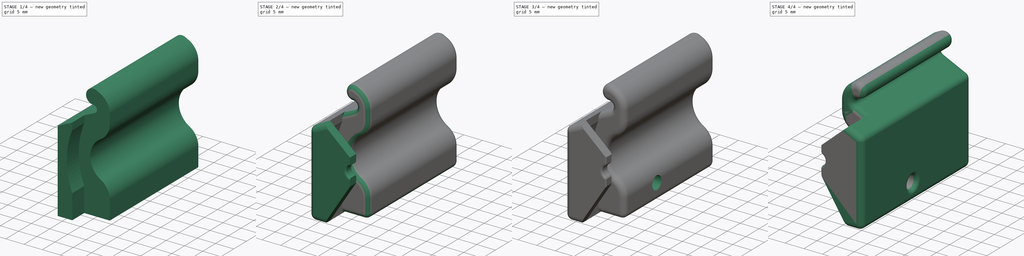
[diagram: build sequence overview — one tinted view per stage of 4, left to right]
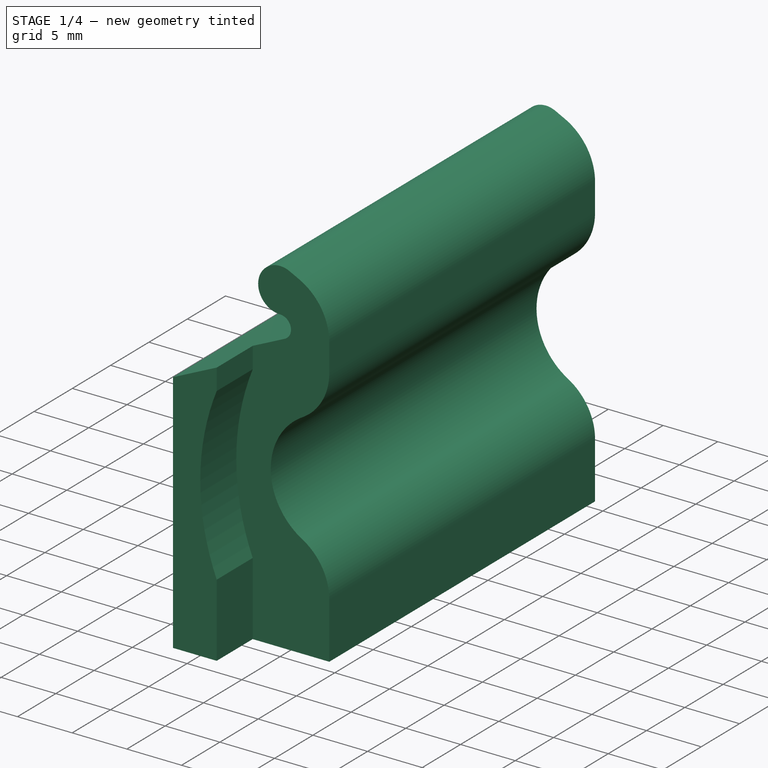
[diagram: stage 1 of 4 — iso view after this stage's code; geometry added in this stage tinted green]
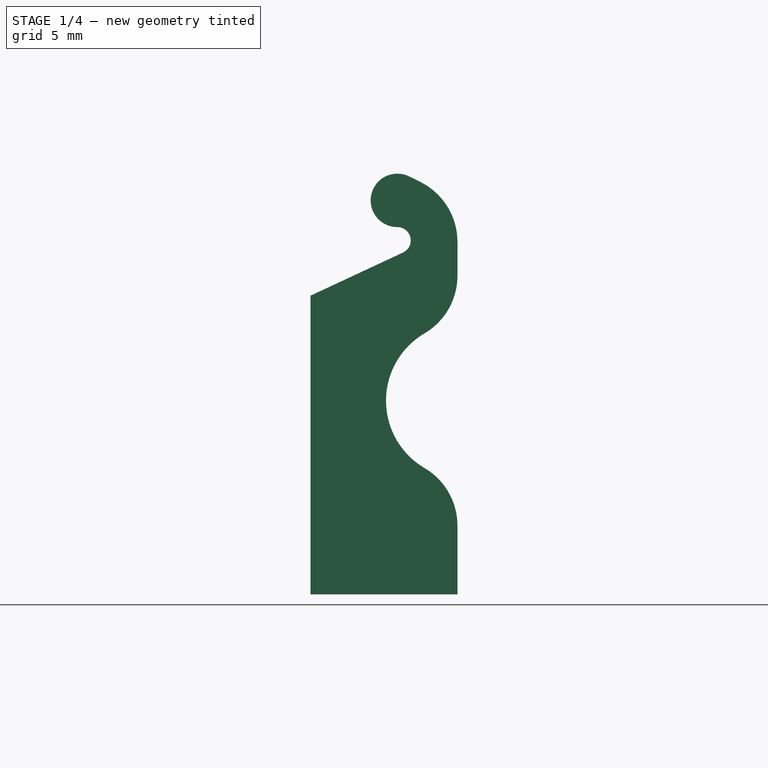
[diagram: stage 1 of 4 — front view after this stage's code; geometry added in this stage tinted green]
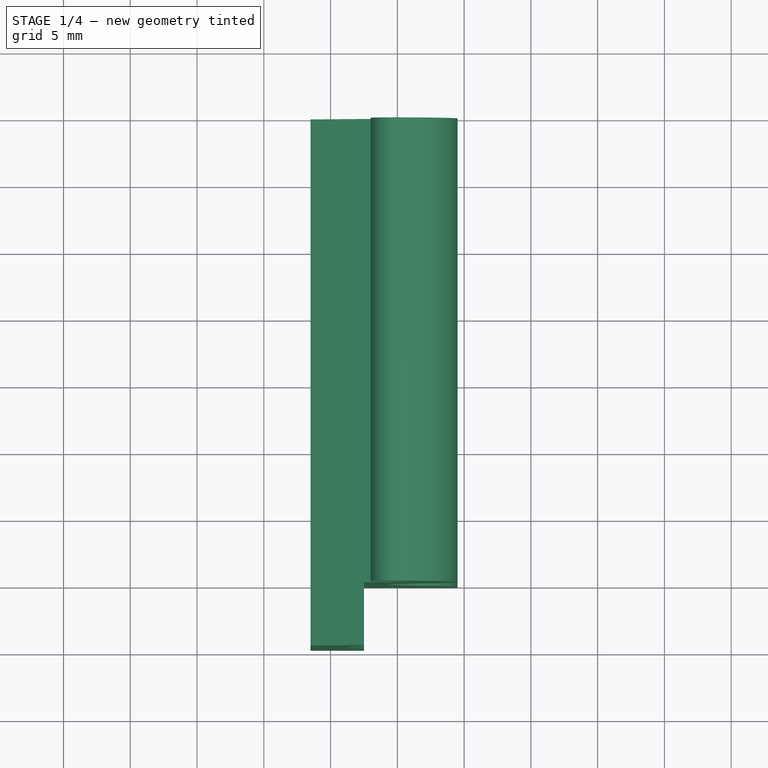
[diagram: stage 1 of 4 — top view after this stage's code; geometry added in this stage tinted green]
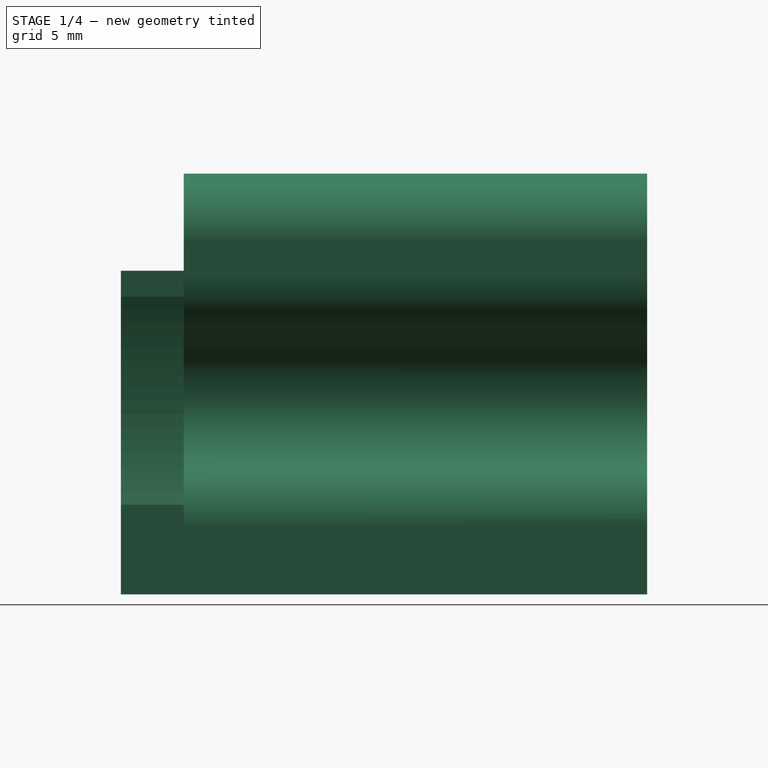
[diagram: stage 1 of 4 — right view after this stage's code; geometry added in this stage tinted green]
FCSTD DOCUMENT  (FreeCAD 1.1R20260106 (Git shallow))
Label: cartridge-clamp
License: CERN Open Hardware Licence strongly-reciprocal
LicenseURL: https://cern-ohl.web.cern.ch/
objects: PartDesign::Fillet×6, Sketcher::SketchObject×4, PartDesign::Pad×3, PartDesign::Chamfer×1, PartDesign::Pocket×1, PartDesign::Body×1, App::Point×1, Part::Mirroring×1
note: 43 computed .brp shape members not serialized (recipe doc carries the construction recipe); baked Part::Feature solids carry a one-line shape summary decoded from their .brp

FEATURE [Sketcher::SketchObject] Sketch
  ArcFitTolerance = 1e-06
  AttachmentSupport = -> [XZ_Plane]
  ExternalTypes = [0]
  FullyConstrained = true
  MakeInternals = false
  MapMode = 5
  Placement = pos=(0,0,0) rot=(1,0,0;1.5708rad)
  sketch-geometry (10):
    g0: LineSegment StartX=4.5 StartY=-20.8286 StartZ=0 EndX=4.5 EndY=-29.5 EndZ=0
    g1: LineSegment StartX=4.5 StartY=-29.5 StartZ=0 EndX=-6.5 EndY=-29.5 EndZ=0
    g2: LineSegment StartX=-6.5 StartY=-29.5 StartZ=0 EndX=-6.5 EndY=-7.13438 EndZ=0
    g3: LineSegment StartX=-6.5 StartY=-7.13438 StartZ=0 EndX=0.422618 EndY=-3.90631 EndZ=0
    g4: ArcOfCircle CenterX=-6e-16 CenterY=-3 CenterZ=0 NormalX=0 NormalY=0 NormalZ=1 AngleXU=0 Radius=1 StartAngle=5.14872 EndAngle=7.85398
    g5: ArcOfCircle CenterX=0 CenterY=0 CenterZ=0 NormalX=0 NormalY=0 NormalZ=1 AngleXU=0 Radius=2 StartAngle=1.11024 EndAngle=4.71239
    g6: LineSegment StartX=0.888889 StartY=1.79161 StartZ=0 EndX=4.5 EndY=1e-16 EndZ=0
    g7: LineSegment StartX=4.5 StartY=0 StartZ=0 EndX=4.5 EndY=-9.17141 EndZ=0
    g8: ArcOfCircle CenterX=5 CenterY=-15 CenterZ=0 NormalX=0 NormalY=0 NormalZ=1 AngleXU=0 Radius=5.85 StartAngle=1.65637 EndAngle=4.62681
    g9: LineSegment [constr] StartX=0 StartY=0 StartZ=0 EndX=-6e-16 EndY=-3 EndZ=0
  constraints (28):
    c: Coincident(g0,g1)
    c: Horizontal(g1)
    c: Coincident(g1,g2)
    c: Vertical(g2)
    c: Coincident(g2,g3)
    c: Tangent(g5,g6) = 1.5708
    c: Coincident(g6,g7)
    c: Vertical(g7)
    c: Radius(g4) = 1
    c: Radius(g5) = 2
    c: Vertical(g0)
    c: Tangent(g5,g4) = 1.5708
    c: Tangent(g4,g3) = -1.5708
    c: Coincident(g5,g-1)
    c: PointOnObject(g7,g0)
    c: Coincident(g8,g0)
    c: Coincident(g8,g7)
    c: DistanceX(g-1,g8) = 5
    c: DistanceY(g8,g-1) = 15
    c: Radius(g8) = 5.85
    c: Coincident(g9,g5)
    c: Coincident(g9,g4)
    c: Angle(g-1,g9) = 1.5708
    c: DistanceX(g-1,g6) = 4.5
    c: PointOnObject(g6,g-1)
    c: DistanceY(g0,g8) = 14.5
    c: DistanceX(g1,g-1) = 6.5
    c: Angle(g2,g3) = 2.00713
FEATURE [PartDesign::Pad] Pad
  Direction = (0,-1,2e-16)
  Length = 34.7
  Length2 = 10
  Placement = pos=(0,0,0) rot=(1,0,0;1.5708rad)
  Profile = -> Sketch
  ReferenceAxis = -> Sketch [N_Axis]
  Refine = true
  Reversed = true
  SideType = 0
  Suppressed = false
  Type = 0
  Type2 = 0
FEATURE [PartDesign::Fillet] Fillet
  Base = -> Pad [Edge23,Edge20,Edge1]
  BaseFeature = -> Pad
  Placement = pos=(0,0,0) rot=(1,0,0;1.5708rad)
  Radius = 5
  Refine = true
  SupportTransform = false
  Suppressed = false
  UseAllEdges = false
FEATURE [Sketcher::SketchObject] Sketch001
  ArcFitTolerance = 1e-06
  AttachmentSupport = -> [XZ_Plane]
  ExternalGeometry = -> [Fillet]
  ExternalTypes = [0]
  FullyConstrained = true
  MakeInternals = false
  MapMode = 5
  Placement = pos=(0,0,0) rot=(1,0,0;1.5708rad)
  sketch-geometry (7):
    g0: LineSegment StartX=-6.5 StartY=-29.5 StartZ=0 EndX=-2.5 EndY=-29.5 EndZ=0
    g1: LineSegment StartX=-2.5 StartY=-29.5 StartZ=0 EndX=-2.5 EndY=-22.7942 EndZ=0
    g2: LineSegment StartX=-6.5 StartY=-29.5 StartZ=0 EndX=-6.5 EndY=-7.13438 EndZ=0
    g3: LineSegment StartX=-6.5 StartY=-7.13438 StartZ=0 EndX=-2.5 EndY=-5.26915 EndZ=0
    g4: ArcOfCircle CenterX=17 CenterY=-15 CenterZ=0 NormalX=0 NormalY=0 NormalZ=1 AngleXU=0 Radius=21 StartAngle=2.76134 EndAngle=3.52184
    g5: LineSegment [constr] StartX=5 StartY=-15 StartZ=0 EndX=17 EndY=-15 EndZ=0
    g6: LineSegment StartX=-2.5 StartY=-5.26915 StartZ=0 EndX=-2.5 EndY=-7.20577 EndZ=0
  constraints (19):
    c: Horizontal(g0)
    c: Coincident(g0,g1)
    c: Vertical(g1)
    c: Coincident(g0,g2)
    c: Coincident(g2,g3)
    c: Coincident(g4,g1)
    c: Coincident(g2,g-3)
    c: Coincident(g0,g-4)
    c: PointOnObject(g3,g-3)
    c: DistanceX(g0,g0) = 4
    c: Coincident(g5,g-5)
    c: Coincident(g5,g4)
    c: Horizontal(g5)
    c: DistanceX(g5,g5) = 12
    c: Radius(g4) = 21
    c: Coincident(g6,g3)
    c: Coincident(g6,g4)
    c: Vertical(g6)
    c: PointOnObject(g3,g1)
FEATURE [PartDesign::Pad] Pad001
  BaseFeature = -> Fillet
  Direction = (0,-1,2e-16)
  Length = 4.7
  Length2 = 10
  Placement = pos=(0,0,0) rot=(1,0,0;1.5708rad)
  Profile = -> Sketch001
  ReferenceAxis = -> Sketch001 [N_Axis]
  Refine = true
  SideType = 0
  Suppressed = false
  Type = 0
  Type2 = 0
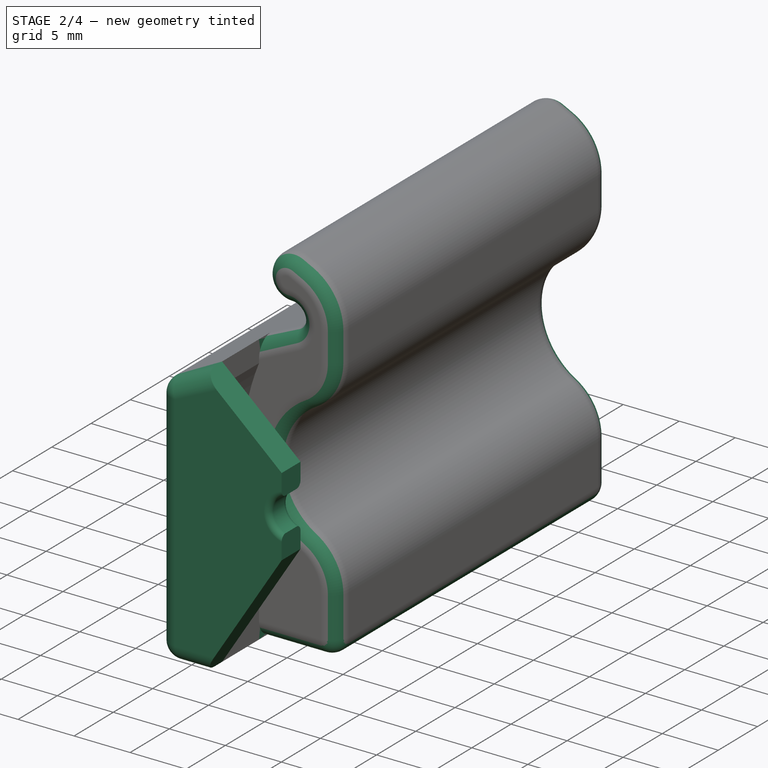
[diagram: stage 2 of 4 — iso view after this stage's code; geometry added in this stage tinted green]
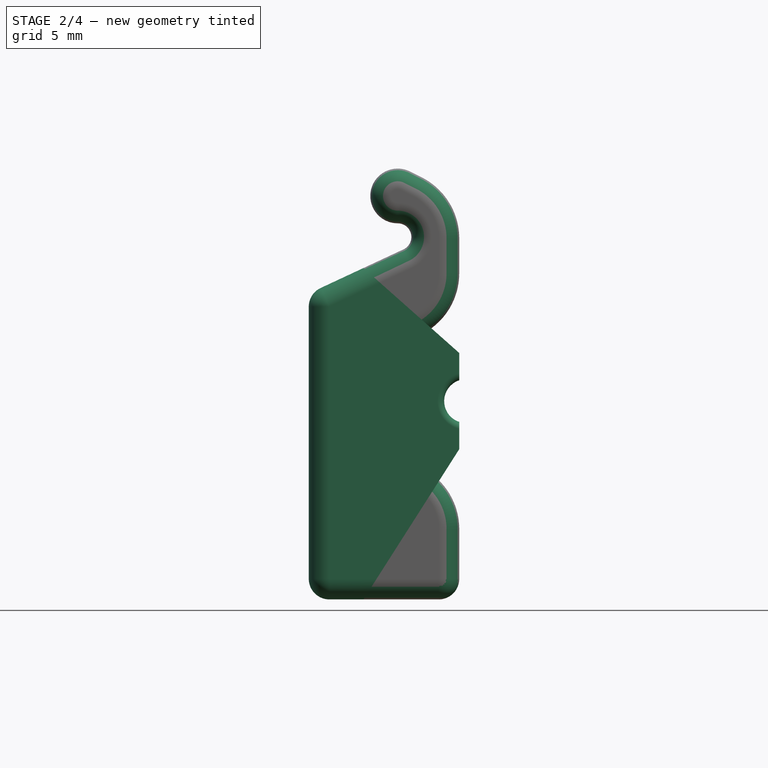
[diagram: stage 2 of 4 — front view after this stage's code; geometry added in this stage tinted green]
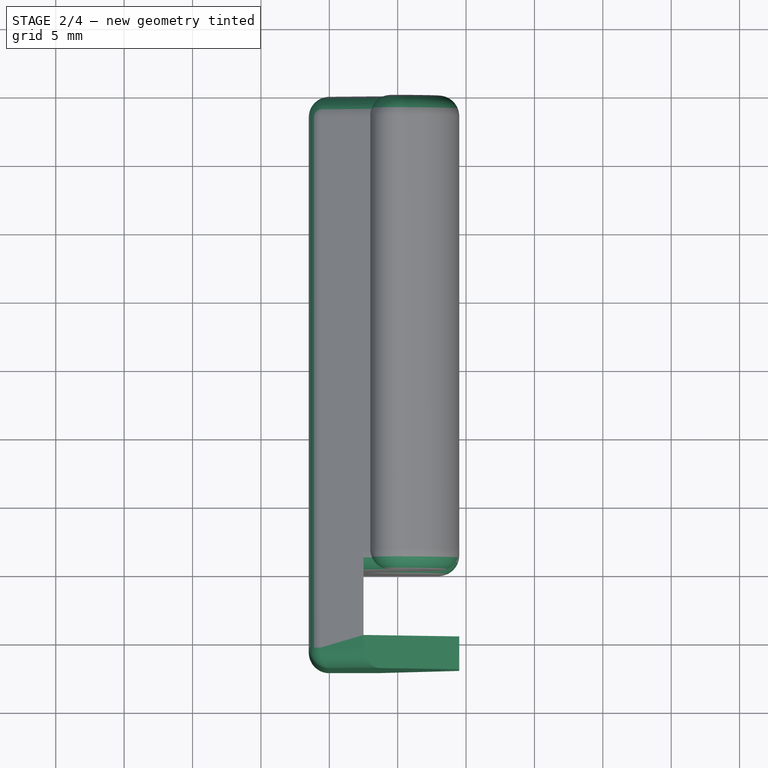
[diagram: stage 2 of 4 — top view after this stage's code; geometry added in this stage tinted green]
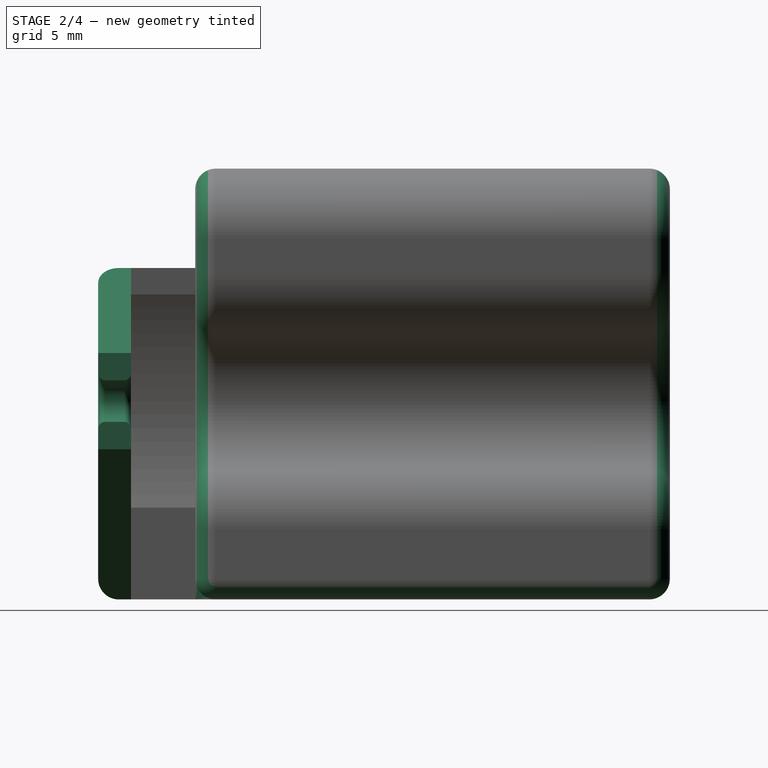
[diagram: stage 2 of 4 — right view after this stage's code; geometry added in this stage tinted green]
FEATURE [Sketcher::SketchObject] Sketch002
  ArcFitTolerance = 1e-06
  AttachmentSupport = -> [Pad001]
  ExternalGeometry = -> [Pad001]
  ExternalTypes = [0]
  FullyConstrained = false
  MakeInternals = false
  MapMode = 5
  Placement = pos=(0,-4.7,0) rot=(1,0,0;1.5708rad)
  sketch-geometry (9):
    g0: ArcOfCircle CenterX=5 CenterY=-15 CenterZ=0 NormalX=0 NormalY=0 NormalZ=1 AngleXU=0 Radius=1.6 StartAngle=1.88862 EndAngle=4.39457
    g1: LineSegment [constr] StartX=4.5 StartY=-13.4801 StartZ=0 EndX=4.5 EndY=-16.5199 EndZ=0
    g2: LineSegment StartX=-2.5 StartY=-5.26915 StartZ=0 EndX=-6.5 EndY=-7.13438 EndZ=0
    g3: LineSegment StartX=-6.5 StartY=-7.13438 StartZ=0 EndX=-6.5 EndY=-29.5 EndZ=0
    g4: LineSegment StartX=-6.5 StartY=-29.5 StartZ=0 EndX=-2.5 EndY=-29.5 EndZ=0
    g5: LineSegment StartX=4.5 StartY=-13.4801 StartZ=0 EndX=4.5 EndY=-11.4801 EndZ=0
    g6: LineSegment StartX=4.5 StartY=-11.4801 StartZ=0 EndX=-2.5 EndY=-5.26915 EndZ=0
    g7: LineSegment StartX=-2.5 StartY=-29.5 StartZ=0 EndX=4.5 EndY=-18.5199 EndZ=0
    g8: LineSegment StartX=4.5 StartY=-18.5199 StartZ=0 EndX=4.5 EndY=-16.5199 EndZ=0
  constraints (21):
    c: Coincident(g0,g-3)
    c: Coincident(g1,g0)
    c: Coincident(g1,g0)
    c: Vertical(g1)
    c: Radius(g0) = 1.6
    c: DistanceX(g0,g0) = 0.5
    c: Coincident(g2,g3)
    c: Coincident(g3,g-5)
    c: Coincident(g3,g4)
    c: Coincident(g0,g5)
    c: Coincident(g5,g6)
    c: Coincident(g6,g2)
    c: Vertical(g5)
    c: Coincident(g2,g-4)
    c: DistanceY(g5,g5) = 2
    c: Coincident(g4,g7)
    c: Coincident(g7,g8)
    c: Coincident(g8,g0)
    c: Vertical(g8)
    c: DistanceY(g8,g8) = 2
    c: Coincident(g4,g-5)
FEATURE [PartDesign::Pad] Pad002
  BaseFeature = -> Pad001
  Direction = (0,-1,2e-16)
  Length = 2.4
  Length2 = 10
  Placement = pos=(0,0,0) rot=(1,0,0;1.5708rad)
  Profile = -> Sketch002
  ReferenceAxis = -> Sketch002 [N_Axis]
  Refine = true
  SideType = 0
  Suppressed = false
  Type = 0
  Type2 = 0
FEATURE [PartDesign::Fillet] Fillet001
  Base = -> Pad002 [Edge6,Edge21,Edge3,Edge63,Edge22,Edge20,Edge55,Edge17,Edge57,Edge56,Edge64]
  BaseFeature = -> Pad002
  Placement = pos=(0,0,0) rot=(1,0,0;1.5708rad)
  Radius = 1.5
  Refine = true
  SupportTransform = false
  Suppressed = false
  UseAllEdges = false
FEATURE [PartDesign::Fillet] Fillet002
  Base = -> Fillet001 [Edge128,Edge117]
  BaseFeature = -> Fillet001
  Placement = pos=(0,0,0) rot=(1,0,0;1.5708rad)
  Radius = 0.5
  Refine = true
  SupportTransform = false
  Suppressed = false
  UseAllEdges = false
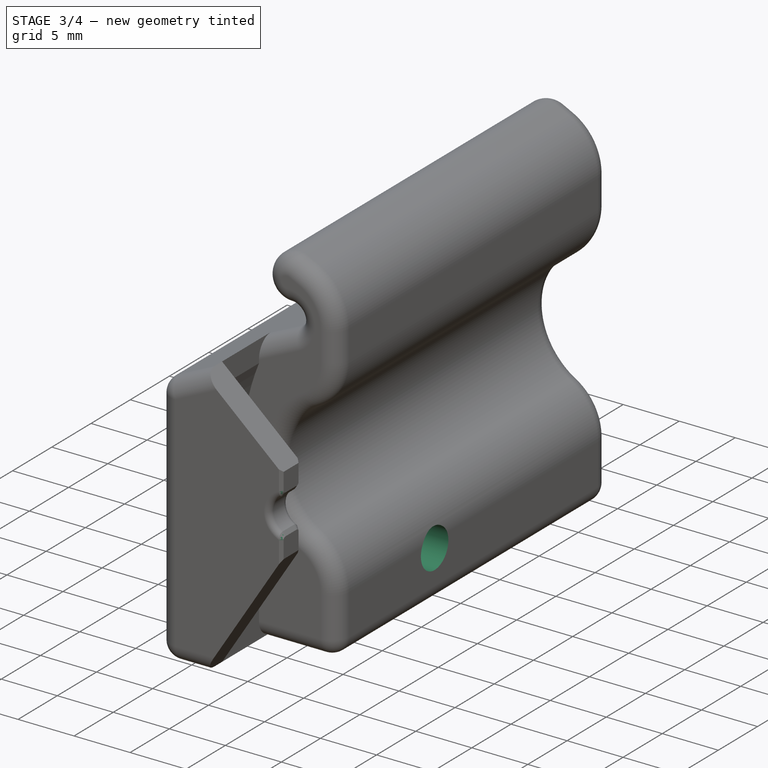
[diagram: stage 3 of 4 — iso view after this stage's code; geometry added in this stage tinted green]
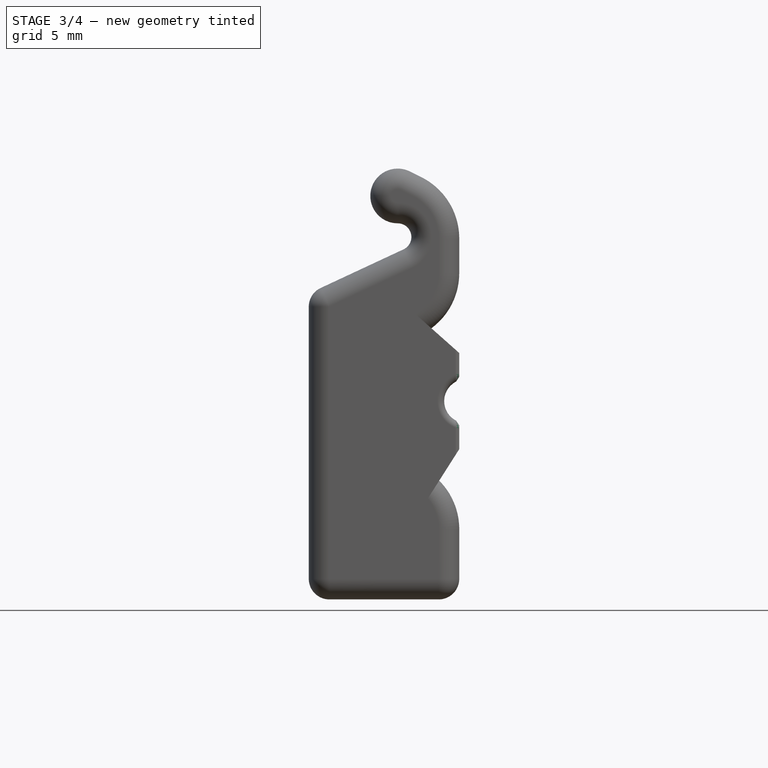
[diagram: stage 3 of 4 — front view after this stage's code; geometry added in this stage tinted green]
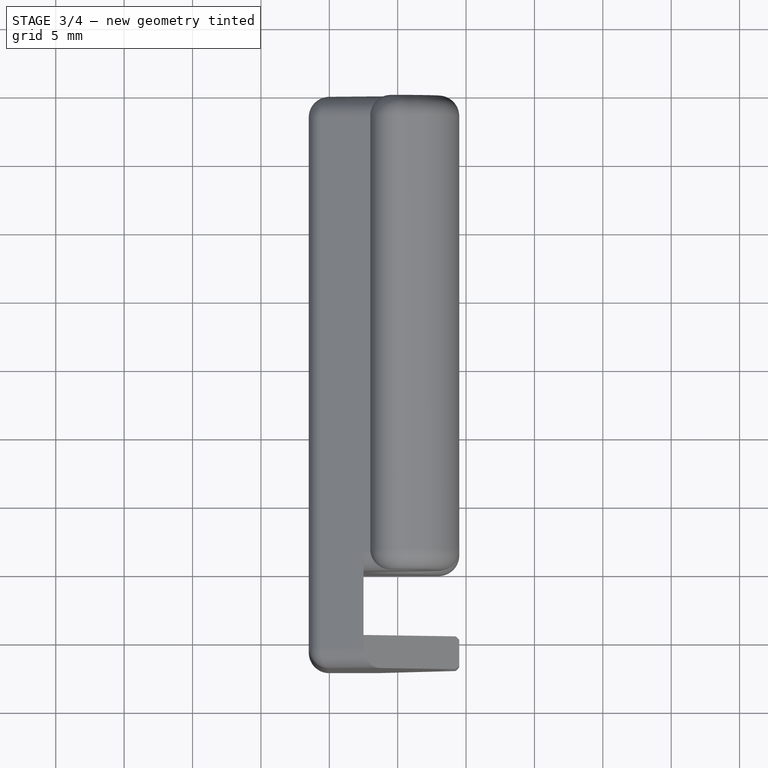
[diagram: stage 3 of 4 — top view after this stage's code; geometry added in this stage tinted green]
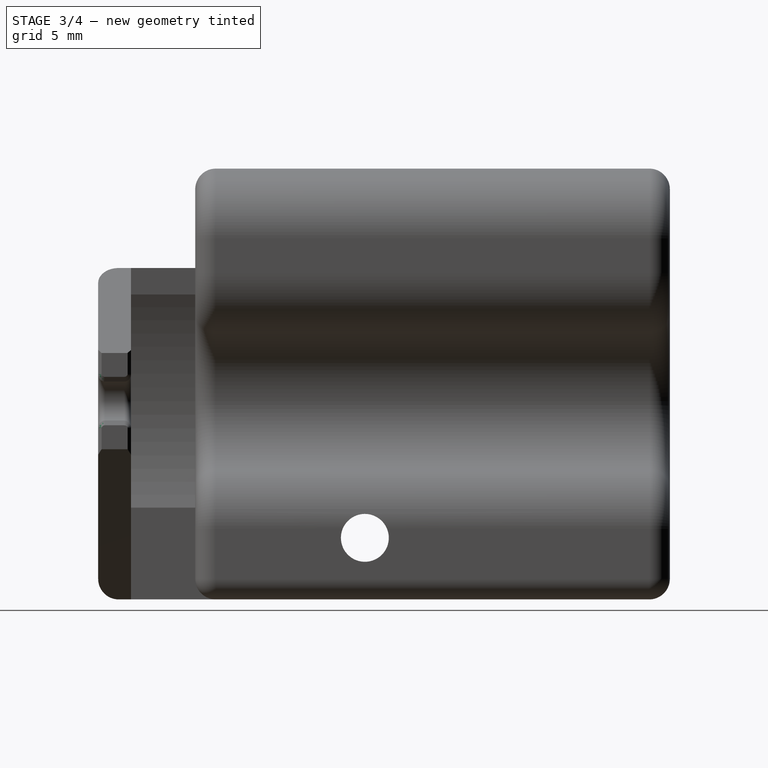
[diagram: stage 3 of 4 — right view after this stage's code; geometry added in this stage tinted green]
FEATURE [PartDesign::Chamfer] Chamfer
  Angle = 45
  Base = -> Fillet002 [Edge19,Edge9]
  BaseFeature = -> Fillet002
  ChamferType = 0
  FlipDirection = false
  Placement = pos=(0,0,0) rot=(1,0,0;1.5708rad)
  Refine = true
  Size = 0.25
  Size2 = 1
  SupportTransform = false
  Suppressed = false
  UseAllEdges = false
FEATURE [Sketcher::SketchObject] Sketch003
  ArcFitTolerance = 1e-06
  AttachmentSupport = -> [Chamfer]
  ExternalGeometry = -> [Chamfer]
  ExternalTypes = [0]
  FullyConstrained = true
  MakeInternals = false
  MapMode = 5
  Placement = pos=(-6.5,0,0) rot=(0.707107,0,-0.707107;3.14159rad)
  sketch-geometry (3):
    g0: LineSegment [constr] StartX=15 StartY=3.2e-15 StartZ=0 EndX=15 EndY=-12.4 EndZ=0
    g1: LineSegment [constr] StartX=15 StartY=-12.4 StartZ=0 EndX=25 EndY=-12.4 EndZ=0
    g2: Circle CenterX=25 CenterY=-12.4 CenterZ=0 NormalX=0 NormalY=0 NormalZ=1 AngleXU=0 Radius=1.75
  constraints (8):
    c: Symmetric(g-3,g-3,g0)
    c: Vertical(g0)
    c: Coincident(g1,g0)
    c: Horizontal(g1)
    c: Coincident(g2,g1)
    c: Diameter(g2) = 3.5
    c: DistanceY(g0,g0) = 12.4
    c: DistanceX(g1,g1) = 10
FEATURE [PartDesign::Pocket] Pocket
  BaseFeature = -> Chamfer
  Direction = (1,0,2e-16)
  Length = 12
  Length2 = 5
  Placement = pos=(0,0,0) rot=(1,0,0;1.5708rad)
  Profile = -> Sketch003
  ReferenceAxis = -> Sketch003 [N_Axis]
  Refine = true
  SideType = 0
  Suppressed = false
  Type = 0
  Type2 = 0
FEATURE [PartDesign::Fillet] Fillet003
  Base = -> Pocket [Edge133]
  BaseFeature = -> Pocket
  Placement = pos=(0,0,0) rot=(1,0,0;1.5708rad)
  Radius = 1
  Refine = true
  SupportTransform = false
  Suppressed = false
  UseAllEdges = false
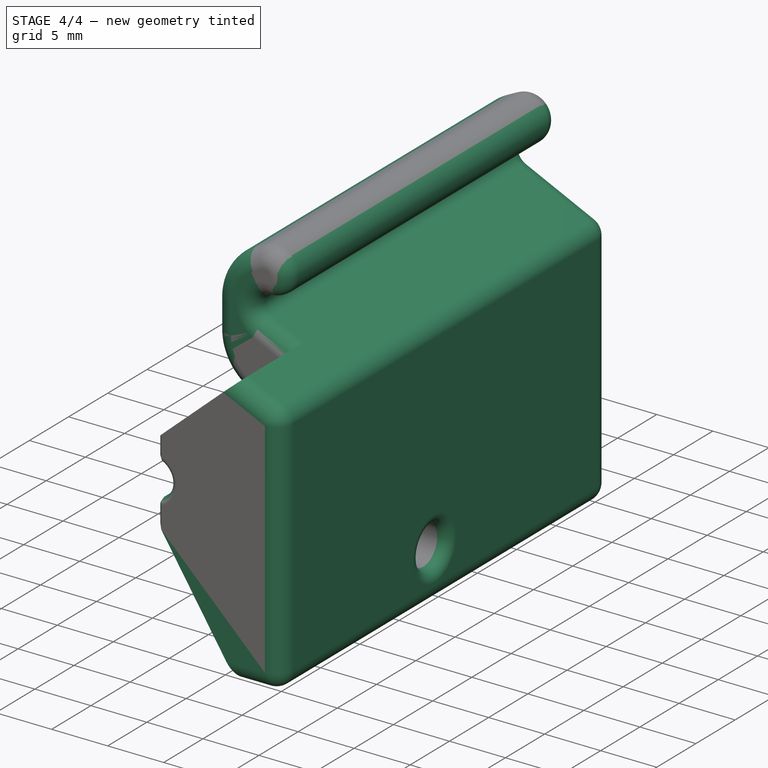
[diagram: stage 4 of 4 — iso view after this stage's code; geometry added in this stage tinted green]
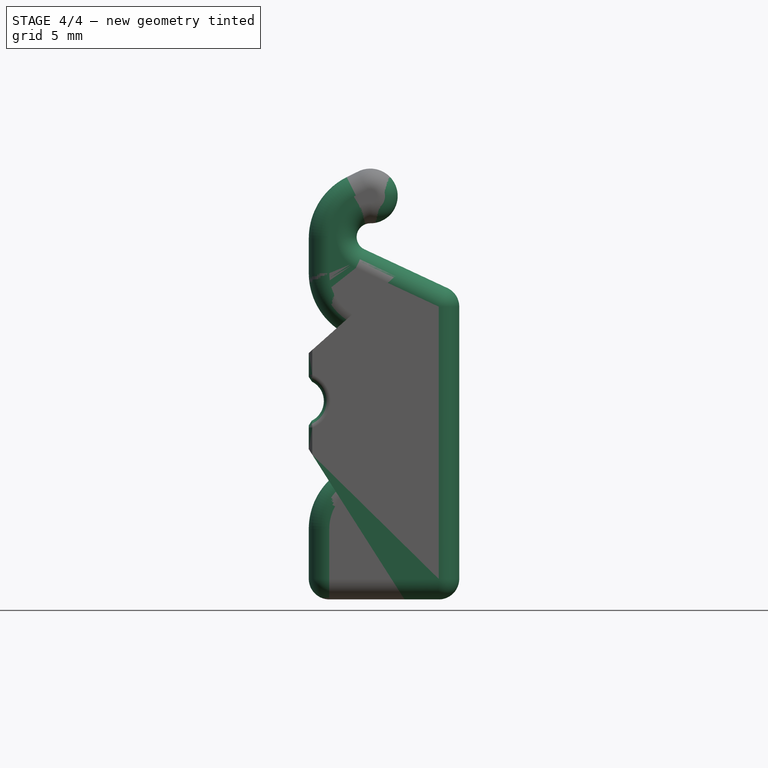
[diagram: stage 4 of 4 — front view after this stage's code; geometry added in this stage tinted green]
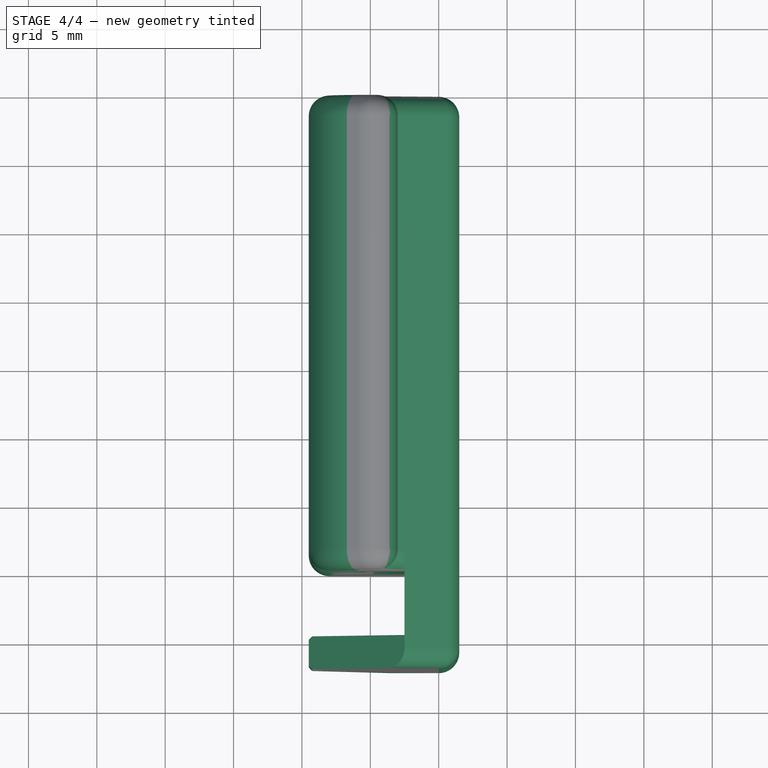
[diagram: stage 4 of 4 — top view after this stage's code; geometry added in this stage tinted green]
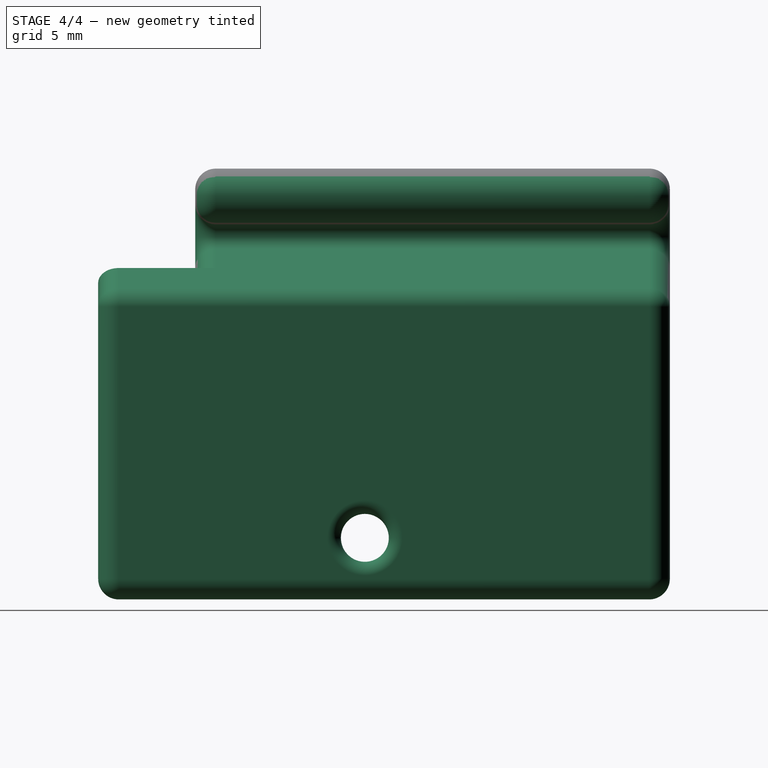
[diagram: stage 4 of 4 — right view after this stage's code; geometry added in this stage tinted green]
FEATURE [PartDesign::Fillet] Fillet004
  Base = -> Fillet003 [Edge22]
  BaseFeature = -> Fillet003
  Placement = pos=(0,0,0) rot=(1,0,0;1.5708rad)
  Radius = 1
  Refine = true
  SupportTransform = false
  Suppressed = false
  UseAllEdges = false
FEATURE [PartDesign::Fillet] Fillet005
  Base = -> Fillet004 [Edge129,Edge132]
  BaseFeature = -> Fillet004
  Placement = pos=(0,0,0) rot=(1,0,0;1.5708rad)
  Radius = 10
  Refine = true
  SupportTransform = false
  Suppressed = false
  UseAllEdges = false
FEATURE [PartDesign::Body] Body  label="Body-left-z-gantry"
  AllowCompound = false
  Group = -> [Sketch,Pad,Fillet,Sketch001,Pad001,Sketch002,Pad002,Fillet001,Fillet002,Chamfer,Sketch003,Pocket,Fillet003,Fillet004,Fillet005]
  Origin = -> Origin
  Tip = -> Fillet005
FEATURE [App::Point] Origin001  label="Origin"
  Role = Origin
FEATURE [Part::Mirroring] Part__Mirroring  label="Body"
  Base = (0,0,0)
  MirrorPlane = -> YZ_Plane
  Normal = (1,-1e-16,1e-16)
  Source = -> Body
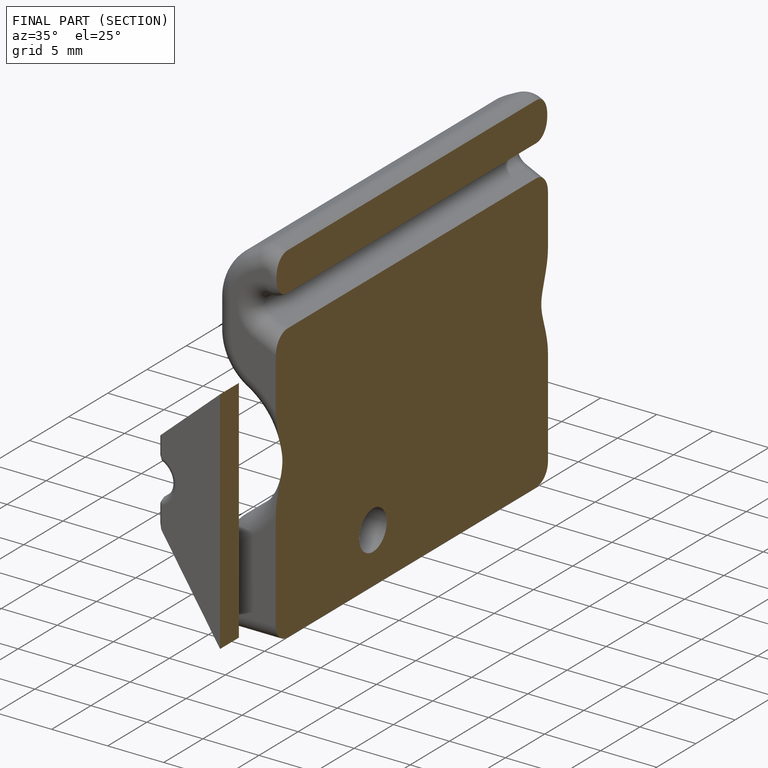
[diagram: finished part — half-section view (interior)]
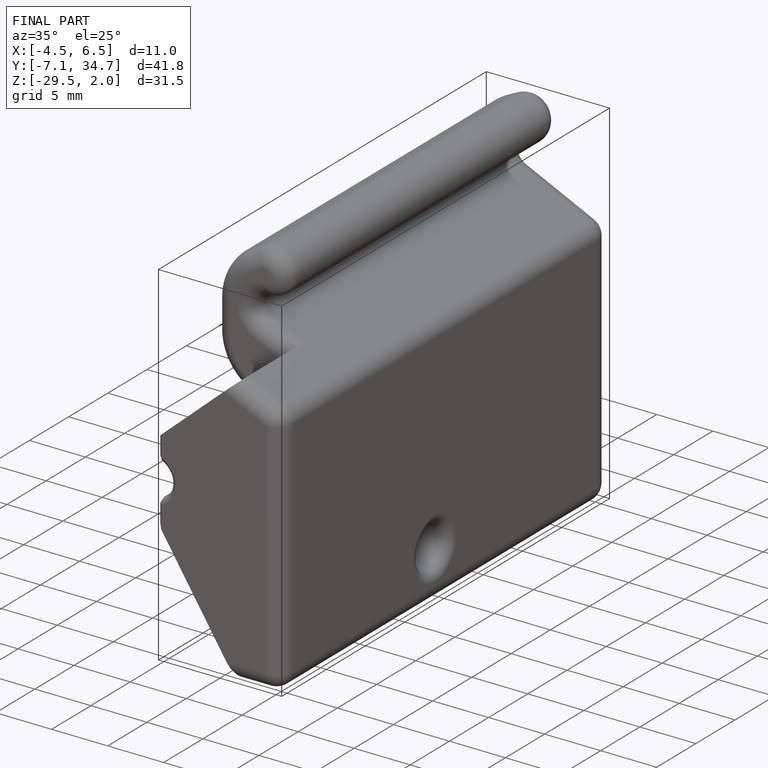
[diagram: finished part — iso view with bounding-box wireframe]
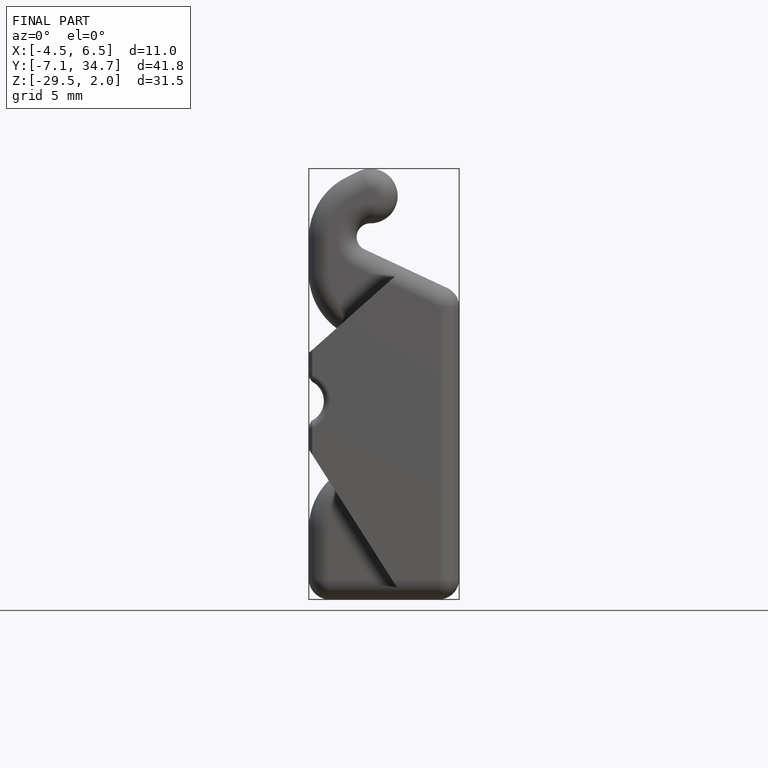
[diagram: finished part — front view with bounding-box wireframe]
